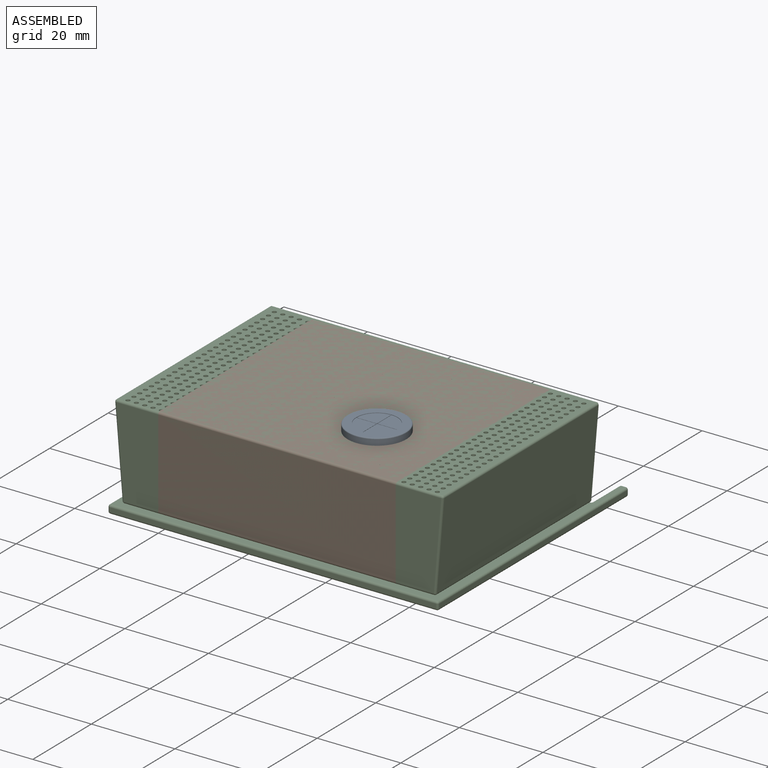
[diagram: assembled view]
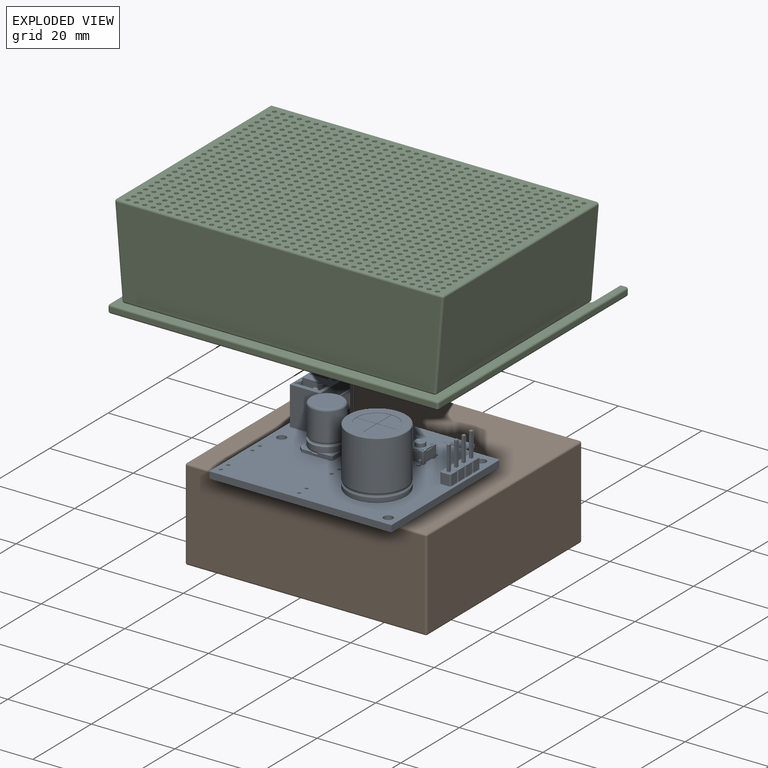
[diagram: exploded view]
GUIDED TOUR — FREECAD ASSEMBLY "siedle-bus"

This assembly has 3 components, labeled P0..P2 below (a component is one placed body or linked part; the same part can appear more than once), held together by 0 modeled joints plus 3 derived contact edges. A joint is a constraint between two components; its type names the relative motion it leaves free:
  CONTACT — a derived adjacency edge — the two components touch in the source model (clearance under 2% of the assembly's diagonal); it is measured from the geometry, not a modeled constraint.
Axis/direction vectors are unit vectors and 'through' points are millimeter coordinates, both in the assembly's world frame.

MATES
  1. CONTACT "contact_0_1": P0 <-> P1, contact direction (-0.252, 0.679, -0.689) through (155.05, -107.01, -1.62) mm (derived from contact, not a modeled constraint)
  2. CONTACT "contact_0_2": P0 <-> P2, contact direction (0.000, 0.000, 1.000) through (154.67, -105.57, -1.62) mm (derived from contact, not a modeled constraint)
  3. CONTACT "contact_1_2": P1 <-> P2, contact direction (0.000, 0.000, 1.000) through (192.45, -95.60, -2.10) mm (derived from contact, not a modeled constraint)

ASSEMBLY ORDER
  1. P0 — the base component [order heuristic]
  2. P1 [order heuristic]
  3. P2 [order heuristic]
Order-tag legend:
  [order heuristic] — this assembly is geometrically interlocked (no collision-free removal order exists), so components are listed in mate-graph order; insertion feasibility is not verified.

Of the 3 components, 2 carry a construction recipe — the FreeCAD feature program (sketches with constraints, then the solid features that consume them) that regenerates the part from scratch, quoted from this document or from the linked companion document it references; the rest are supplied as boundary geometry only. The tour below walks the components in assembly order: each is shown spotlighted twice — in the assembled view, then in the exploded view, where a leader line traces a displaced component back to its assembled socket (components that stay in place when exploded have no leader line; saturated green if recipe-attached, orange if geometry-only; every other component desaturated gray) — followed by its recipe or geometry summary and the mates that hold it.
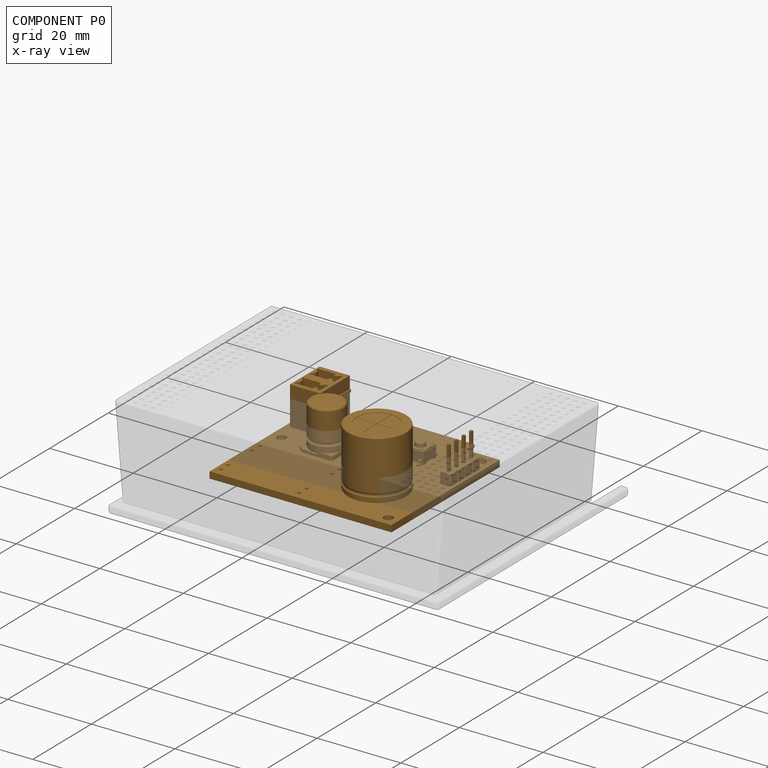
[diagram: component P0 — x-ray view]
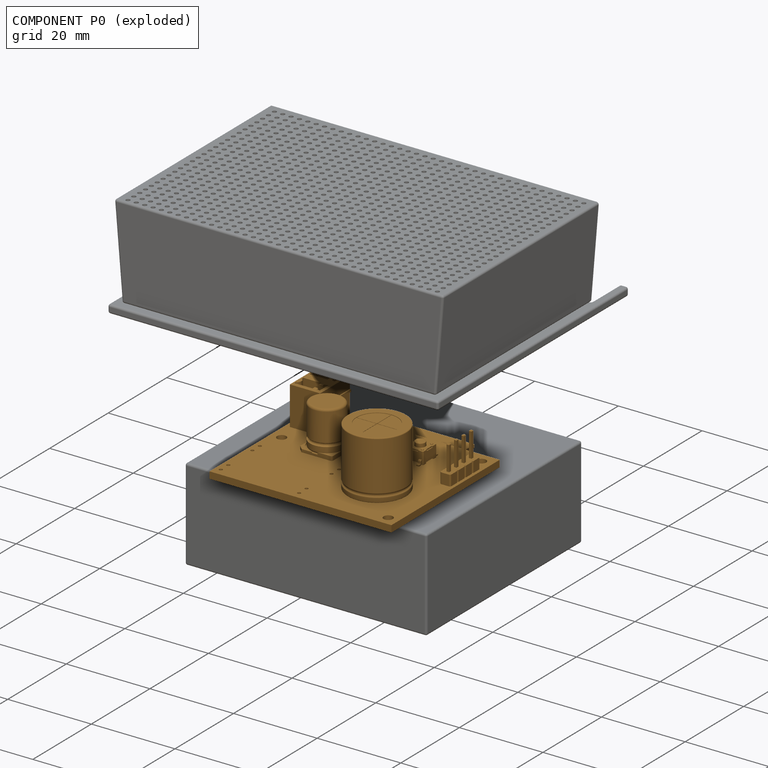
[diagram: component P0 — exploded]
COMPONENT P0 — geometry summary ("siedle-bus"; no construction recipe available for this part):
  bounding box: 43.5 x 42.9 x 18.7 mm
  tessellated surface: 48,012 triangles
  volume: 6959 mm^3 (20% of its bounding box)
Held by: resting contact with P1 (derived edge); resting contact with P2 (derived edge).
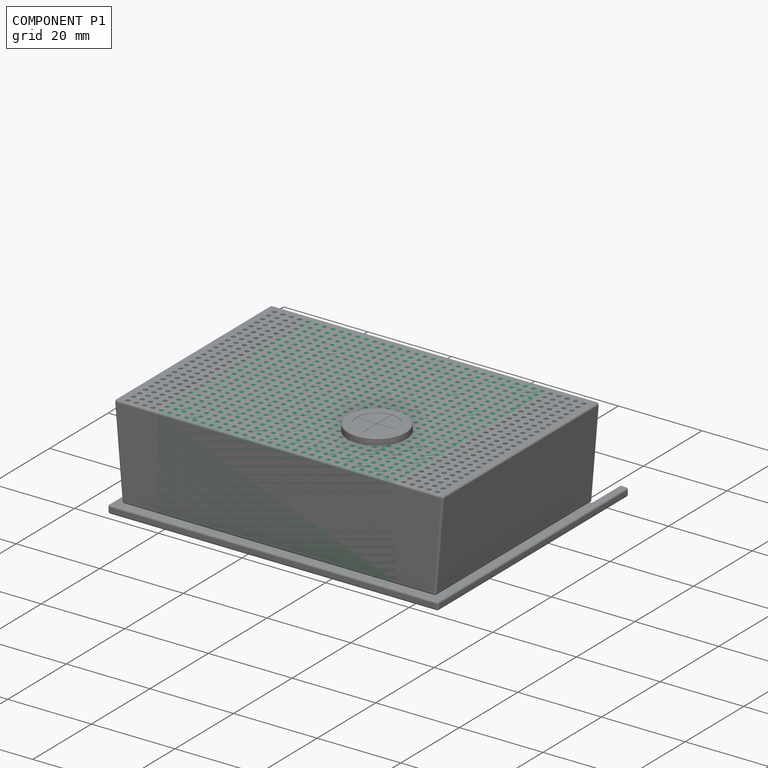
[diagram: component P1 — assembled]
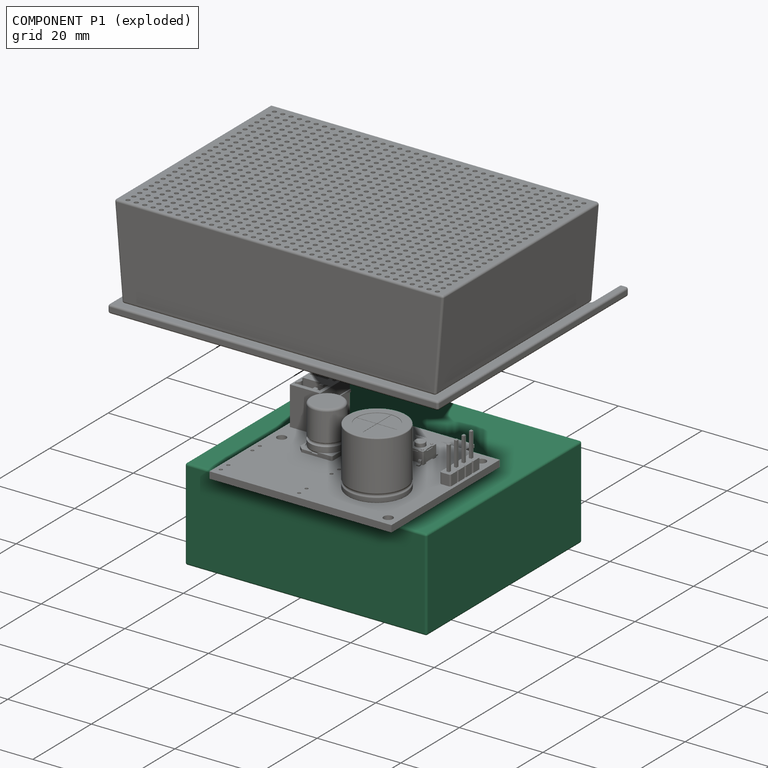
[diagram: component P1 — exploded]
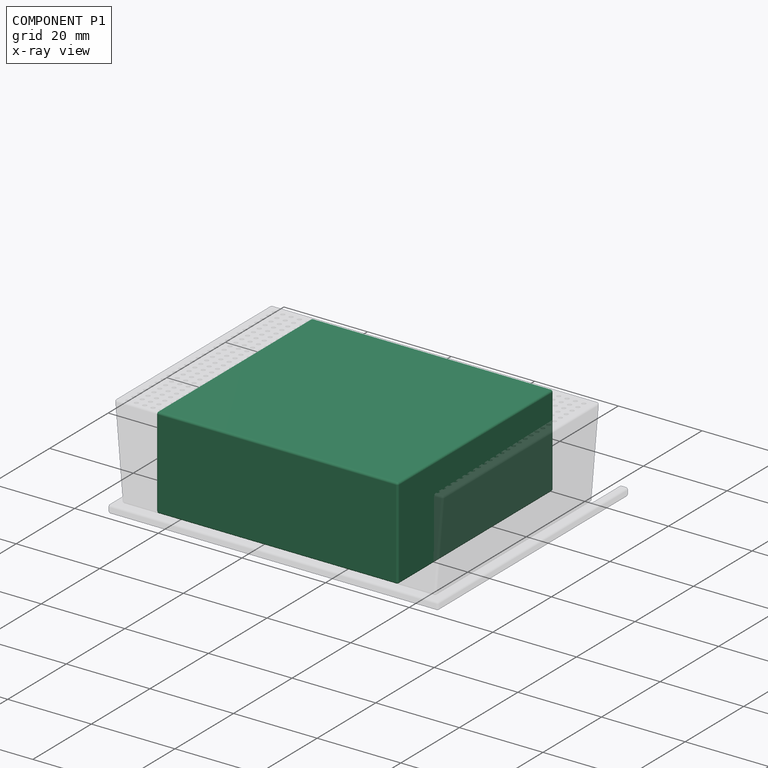
[diagram: component P1 — x-ray view]
COMPONENT P1 — recipe-attached ("cage_mini", modeled in this document).
Held by: resting contact with P0 (derived edge); resting contact with P2 (derived edge).
Construction recipe (the document's own serialized feature program — sketch geometry with constraints, then the solid features built on it; lengths are millimeters unless a unit is written):

FEATURE [PartDesign::SubShapeBinder] Binder  label="PCB"
  BindCopyOnChange = 0
  BindMode = 0
  ClaimChildren = false
  Context = -> Part [Binder.]
  Fuse = false
  MakeFace = true
  OffsetFill = false
  OffsetIntersection = false
  OffsetJoinType = 0
  OffsetOpenResult = false
  PartialLoad = false
  Refine = true
  Relative = true
  Support = -> [Board_cf86]
  _Version = 2
FEATURE [PartDesign::FeatureBase] BaseFeature
  BaseFeature = -> Extrude
  Suppressed = false
FEATURE [Sketcher::SketchObject] Sketch001
  ArcFitTolerance = 1e-06
  AttachmentSupport = -> [BaseFeature]
  ExternalGeometry = -> [BaseFeature,Binder]
  FullyConstrained = true
  MakeInternals = false
  MapMode = 5
  Placement = pos=(0,0,-7.6) rot=(1,0,0;3.14159rad)
  expr: Constraints[10] = Spreadsheet.cage_thickness
  expr: Constraints[16] = Spreadsheet.cage_thickness
  expr: Constraints[18] = Spreadsheet.space_for_cables
  expr: Constraints[25] = Spreadsheet.cage_thickness
  expr: Constraints[26] = Spreadsheet.cage_screws_head_diameter
  expr: Constraints[27] = Spreadsheet.cage_screws_head_diameter
  expr: Constraints[28] = Spreadsheet.cage_screws_head_diameter
  expr: Constraints[32] = Spreadsheet.cage_screws_hole_diameter
  expr: Constraints[33] = Spreadsheet.cage_screws_hole_diameter
  expr: Constraints[34] = Spreadsheet.cage_screws_hole_diameter
  expr: Constraints[8] = Spreadsheet.cage_thickness
  expr: Constraints[9] = Spreadsheet.cage_thickness
  sketch-geometry (20):
    g0: LineSegment StartX=198 StartY=130.5 StartZ=0 EndX=146.5 EndY=130.5 EndZ=0
    g1: LineSegment StartX=146.5 StartY=130.5 StartZ=0 EndX=146.5 EndY=81.64 EndZ=0
    g2: LineSegment StartX=146.5 StartY=81.64 StartZ=0 EndX=198 EndY=81.64 EndZ=0
    g3: LineSegment StartX=198 StartY=81.64 StartZ=0 EndX=198 EndY=130.5 EndZ=0
    g4: ArcOfCircle CenterX=152 CenterY=98.855 CenterZ=0 NormalX=0 NormalY=0 NormalZ=1 AngleXU=0 Radius=3.5 StartAngle=-6.22e-14 EndAngle=3.14159
    g5: ArcOfCircle CenterX=152 CenterY=94.225 CenterZ=0 NormalX=0 NormalY=0 NormalZ=1 AngleXU=0 Radius=3.5 StartAngle=3.14159 EndAngle=6.28319
    g6: LineSegment StartX=155.5 StartY=98.855 StartZ=0 EndX=155.5 EndY=94.225 EndZ=0
    g7: LineSegment StartX=148.5 StartY=98.855 StartZ=0 EndX=148.5 EndY=94.225 EndZ=0
    g8: LineSegment [constr] StartX=152 StartY=98.855 StartZ=0 EndX=155.725 EndY=98.855 EndZ=0
    g9: LineSegment [constr] StartX=152 StartY=94.225 StartZ=0 EndX=155.275 EndY=94.225 EndZ=0
    g10: Circle [constr] CenterX=192.5 CenterY=106.499 CenterZ=0 NormalX=0 NormalY=0 NormalZ=1 AngleXU=0 Radius=3.5
    g11: Circle [constr] CenterX=148 CenterY=125 CenterZ=0 NormalX=0 NormalY=0 NormalZ=1 AngleXU=0 Radius=3.5
    g12: Circle [constr] CenterX=148 CenterY=87.14 CenterZ=0 NormalX=0 NormalY=0 NormalZ=1 AngleXU=0 Radius=3.5
    g13: Circle CenterX=148 CenterY=87.14 CenterZ=0 NormalX=0 NormalY=0 NormalZ=1 AngleXU=0 Radius=2
    g14: Circle CenterX=148 CenterY=125 CenterZ=0 NormalX=0 NormalY=0 NormalZ=1 AngleXU=0 Radius=2
    g15: Circle CenterX=192.5 CenterY=106.499 CenterZ=0 NormalX=0 NormalY=0 NormalZ=1 AngleXU=0 Radius=2
    g16: LineSegment [constr] StartX=196 StartY=128.5 StartZ=0 EndX=144.5 EndY=128.5 EndZ=0
    g17: LineSegment [constr] StartX=144.5 StartY=128.5 StartZ=0 EndX=144.5 EndY=83.64 EndZ=0
    g18: LineSegment [constr] StartX=144.5 StartY=83.64 StartZ=0 EndX=196 EndY=83.64 EndZ=0
    g19: LineSegment [constr] StartX=196 StartY=83.64 StartZ=0 EndX=196 EndY=128.5 EndZ=0
  constraints (51):
    c: Coincident(g0,g1)
    c: Coincident(g1,g2)
    c: Coincident(g2,g3)
    c: Coincident(g3,g0)
    c: Horizontal(g0)
    c: Horizontal(g2)
    c: Vertical(g1)
    c: Vertical(g3)
    c: Distance(g3,g-3) = 2
    c: Distance(g-5,g2) = 2
    c: Distance(g0,g-4) = 2
    c: Tangent(g4,g6) = 1.5708
    c: Tangent(g5,g6) = 1.5708
    c: Tangent(g5,g7) = -1.5708
    c: Equal(g4,g5)
    c: Tangent(g7,g4) = -1.5708
    c: Distance(g4,g1) = 2
    c: Parallel(g1,g7)
    c: Distance(g6,g7) = 7
    c: Coincident(g8,g4)
    c: Coincident(g8,g-11)
    c: Horizontal(g8)
    c: Coincident(g9,g5)
    c: Coincident(g9,g-9)
    c: Horizontal(g9)
    c: Distance(g-7,g1) = 2
    c: Diameter(g11) = 7
    c: Diameter(g10) = 7
    c: Diameter(g12) = 7
    c: Coincident(g15,g10)
    c: Coincident(g11,g14)
    c: Coincident(g13,g12)
    c: Diameter(g13) = 4
    c: Diameter(g14) = 4
    c: Diameter(g15) = 4
    c: Horizontal(g10,g-12)
    c: Coincident(g16,g17)
    c: Coincident(g17,g18)
    c: Coincident(g18,g19)
    c: Coincident(g19,g16)
    c: Horizontal(g16)
    c: Horizontal(g18)
    c: Vertical(g17)
    c: Coincident(g16,g-4)
    c: Coincident(g18,g-6)
    c: PointOnObject(g-7,g17)
    c: Tangent(g11,g16)
    c: Tangent(g17,g11)
    c: Tangent(g12,g18)
    c: Tangent(g12,g17)
    c: Tangent(g19,g10)
FEATURE [PartDesign::Pad] Pad  label="cage_bottom"
  BaseFeature = -> BaseFeature
  Direction = (0,0,-1)
  Length = 2
  Length2 = 10
  Profile = -> Sketch001
  ReferenceAxis = -> Sketch001 [N_Axis]
  Refine = true
  Suppressed = false
  Type = 0
  expr: Length = Spreadsheet.cage_thickness
FEATURE [Sketcher::SketchObject] Sketch002
  ArcFitTolerance = 1e-06
  AttachmentSupport = -> [Pad]
  ExternalGeometry = -> [Pad]
  FullyConstrained = true
  MakeInternals = false
  MapMode = 5
  Placement = pos=(0,0,-7.6) rot=(0,0,1;0rad)
  sketch-geometry (8):
    g0: LineSegment StartX=196 StartY=-83.64 StartZ=0 EndX=146.5 EndY=-83.64 EndZ=0
    g1: LineSegment StartX=146.5 StartY=-83.64 StartZ=0 EndX=146.5 EndY=-128.5 EndZ=0
    g2: LineSegment StartX=146.5 StartY=-128.5 StartZ=0 EndX=196 EndY=-128.5 EndZ=0
    g3: LineSegment StartX=196 StartY=-128.5 StartZ=0 EndX=196 EndY=-83.64 EndZ=0
    g4: LineSegment StartX=198 StartY=-81.64 StartZ=0 EndX=144.5 EndY=-81.64 EndZ=0
    g5: LineSegment StartX=144.5 StartY=-81.64 StartZ=0 EndX=144.5 EndY=-130.5 EndZ=0
    g6: LineSegment StartX=144.5 StartY=-130.5 StartZ=0 EndX=198 EndY=-130.5 EndZ=0
    g7: LineSegment StartX=198 StartY=-130.5 StartZ=0 EndX=198 EndY=-81.64 EndZ=0
  constraints (20):
    c: Coincident(g0,g1)
    c: Coincident(g1,g2)
    c: Coincident(g2,g3)
    c: Coincident(g3,g0)
    c: Horizontal(g0)
    c: Vertical(g1)
    c: Vertical(g3)
    c: Coincident(g0,g-11)
    c: Coincident(g4,g5)
    c: Coincident(g5,g6)
    c: Coincident(g6,g7)
    c: Coincident(g7,g4)
    c: Horizontal(g4)
    c: Horizontal(g6)
    c: Vertical(g5)
    c: Vertical(g7)
    c: Coincident(g4,g-6)
    c: Coincident(g5,g-5)
    c: PointOnObject(g-9,g1)
    c: Tangent(g2,g-8)
FEATURE [PartDesign::Pad] Pad001  label="cage_walls"
  BaseFeature = -> Pad
  Direction = (0,0,1)
  Length = 18
  Length2 = 10
  Profile = -> Sketch002
  ReferenceAxis = -> Sketch002 [N_Axis]
  Refine = true
  Suppressed = false
  Type = 0
  expr: Length = Spreadsheet.pcb_components_bottom + Spreadsheet.pcb_tickness + Spreadsheet.pcb_components_top
FEATURE [PartDesign::ShapeBinder] ShapeBinder001  label="inside_shapebinder"
  Support = -> [Pad001]
  TraceSupport = false
FEATURE [Sketcher::SketchObject] Sketch003
  ArcFitTolerance = 1e-06
  AttachmentSupport = -> [ShapeBinder001]
  ExternalGeometry = -> [ShapeBinder001]
  FullyConstrained = true
  MakeInternals = false
  MapMode = 5
  Placement = pos=(0,0,10.4) rot=(0,0,1;0rad)
  expr: Constraints[10] = Spreadsheet.cage_slack + Spreadsheet.cage_thickness
  expr: Constraints[11] = Spreadsheet.cage_slack + Spreadsheet.cage_thickness
  expr: Constraints[8] = Spreadsheet.cage_slack + Spreadsheet.cage_thickness
  expr: Constraints[9] = Spreadsheet.cage_slack + Spreadsheet.cage_thickness
  sketch-geometry (4):
    g0: LineSegment StartX=200.15 StartY=-79.49 StartZ=0 EndX=142.35 EndY=-79.49 EndZ=0
    g1: LineSegment StartX=142.35 StartY=-79.49 StartZ=0 EndX=142.35 EndY=-132.65 EndZ=0
    g2: LineSegment StartX=142.35 StartY=-132.65 StartZ=0 EndX=200.15 EndY=-132.65 EndZ=0
    g3: LineSegment StartX=200.15 StartY=-132.65 StartZ=0 EndX=200.15 EndY=-79.49 EndZ=0
  constraints (12):
    c: Coincident(g0,g1)
    c: Coincident(g1,g2)
    c: Coincident(g2,g3)
    c: Coincident(g3,g0)
    c: Horizontal(g0)
    c: Horizontal(g2)
    c: Vertical(g1)
    c: Vertical(g3)
    c: Distance(g3,g-5) = 2.15
    c: Distance(g-4,g2) = 2.15
    c: Distance(g0,g-3) = 2.15
    c: Distance(g1,g-6) = 2.15
FEATURE [PartDesign::Pad] Pad002  label="cover"
  Direction = (0,0,1)
  Length = 2
  Length2 = 10
  Profile = -> Sketch003
  ReferenceAxis = -> Sketch003 [N_Axis]
  Refine = true
  Suppressed = false
  Type = 0
  expr: Length = Spreadsheet.cage_thickness
FEATURE [Sketcher::SketchObject] Sketch004
  ArcFitTolerance = 1e-06
  AttachmentSupport = -> [Pad002]
  ExternalGeometry = -> [Pad002]
  FullyConstrained = true
  MakeInternals = false
  MapMode = 5
  Placement = pos=(0,0,10.4) rot=(1,0,0;3.14159rad)
  expr: Constraints[18] = Spreadsheet.cage_thickness
  expr: Constraints[19] = Spreadsheet.cage_thickness
  expr: Constraints[20] = Spreadsheet.cage_thickness
  expr: Constraints[21] = Spreadsheet.cage_thickness
  sketch-geometry (8):
    g0: LineSegment StartX=200.15 StartY=132.65 StartZ=0 EndX=142.35 EndY=132.65 EndZ=0
    g1: LineSegment StartX=142.35 StartY=132.65 StartZ=0 EndX=142.35 EndY=79.49 EndZ=0
    g2: LineSegment StartX=142.35 StartY=79.49 StartZ=0 EndX=200.15 EndY=79.49 EndZ=0
    g3: LineSegment StartX=200.15 StartY=79.49 StartZ=0 EndX=200.15 EndY=132.65 EndZ=0
    g4: LineSegment StartX=198.15 StartY=130.65 StartZ=0 EndX=144.35 EndY=130.65 EndZ=0
    g5: LineSegment StartX=144.35 StartY=130.65 StartZ=0 EndX=144.35 EndY=81.49 EndZ=0
    g6: LineSegment StartX=144.35 StartY=81.49 StartZ=0 EndX=198.15 EndY=81.49 EndZ=0
    g7: LineSegment StartX=198.15 StartY=81.49 StartZ=0 EndX=198.15 EndY=130.65 EndZ=0
  constraints (22):
    c: Coincident(g0,g1)
    c: Coincident(g1,g2)
    c: Coincident(g2,g3)
    c: Coincident(g3,g0)
    c: Horizontal(g0)
    c: Horizontal(g2)
    c: Vertical(g1)
    c: Vertical(g3)
    c: Coincident(g-4,g0)
    c: Coincident(g1,g-6)
    c: Coincident(g4,g5)
    c: Coincident(g5,g6)
    c: Coincident(g6,g7)
    c: Coincident(g7,g4)
    c: Horizontal(g4)
    c: Horizontal(g6)
    c: Vertical(g5)
    c: Vertical(g7)
    c: Distance(g3,g7) = 2
    c: Distance(g5,g1) = 2
    c: Distance(g6,g2) = 2
    c: Distance(g0,g4) = 2
FEATURE [PartDesign::Pad] Pad003  label="cover_walls"
  BaseFeature = -> Pad002
  Direction = (0,0,-1)
  Length = 20
  Length2 = 10
  Profile = -> Sketch004
  ReferenceAxis = -> Sketch004 [N_Axis]
  Refine = true
  Suppressed = false
  Type = 0
  expr: Length = Spreadsheet.cage_thickness + Spreadsheet.pcb_components_bottom + Spreadsheet.pcb_tickness + Spreadsheet.pcb_components_top
FEATURE [PartDesign::Fillet] Fillet
  Base = -> Pad003 [Edge1,Edge2,Edge3,Edge4,Edge5,Edge6,Edge7,Edge8,Edge9,Edge10,Edge11,Edge12,Edge13,Edge14,Edge15,Edge16,Edge17,Edge18,Edge19,Edge20,Edge21,Edge22,Edge23,Edge24]
  BaseFeature = -> Pad003
  Radius = 0.5
  Refine = true
  SupportTransform = false
  Suppressed = false
  UseAllEdges = true
  expr: Radius = Spreadsheet.fillet_diameter
FEATURE [PartDesign::Body] Body001  label="outside"
  AllowCompound = false
  Group = -> [ShapeBinder001,Sketch003,Pad002,Sketch004,Pad003,Fillet]
  Origin = -> Origin011
  Tip = -> Fillet
FEATURE [PartDesign::Fillet] Fillet001
  Base = -> Pad001 [Face26,Face23,Face25,Face5,Face9,Face18,Face34,Face33,Face6,Face7,Face31,Face35,Face17,Face12,Face21,Edge77,Face28,Face8,Face3,Face1,Face2,Face4,Face20,Face16,Face15,Face14,Face13,Face22,Face27,Face32,Face19,Face11,Face10]
  BaseFeature = -> Pad001
  Radius = 0.5
  Refine = true
  SupportTransform = false
  Suppressed = false
  UseAllEdges = false
  expr: Radius = Spreadsheet.fillet_diameter
FEATURE [PartDesign::Body] Body  label="inside"
  AllowCompound = false
  BaseFeature = -> Extrude
  Group = -> [BaseFeature,Sketch001,Pad,Sketch002,Pad001,Binder,Fillet001]
  Origin = -> Origin010
  Tip = -> Fillet001
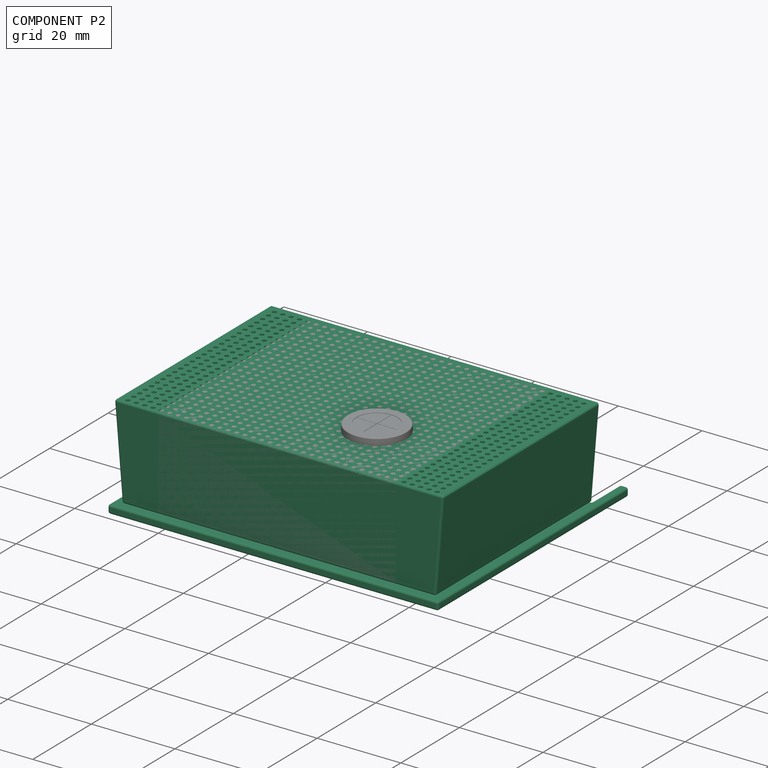
[diagram: component P2 — assembled]
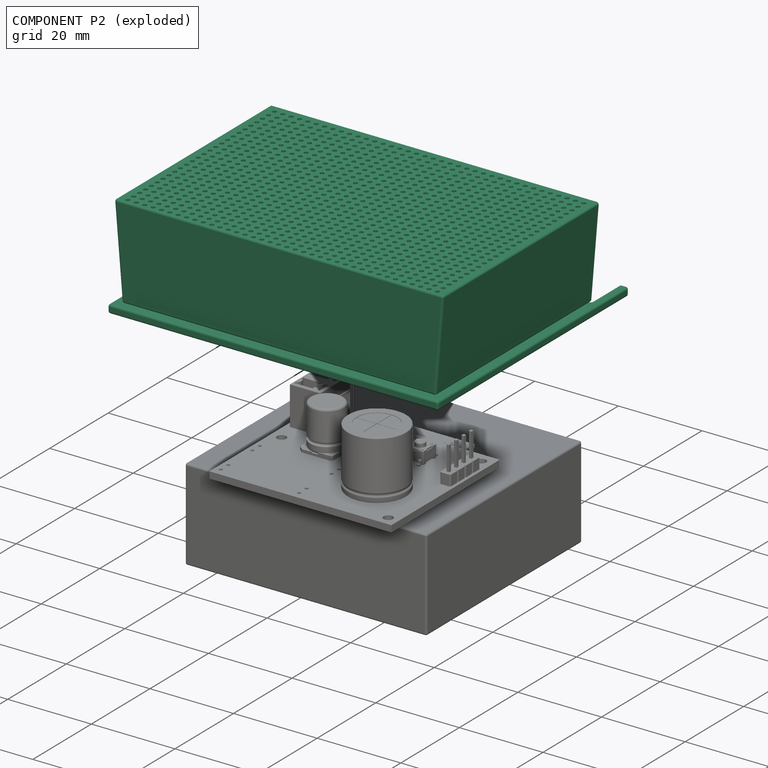
[diagram: component P2 — exploded]
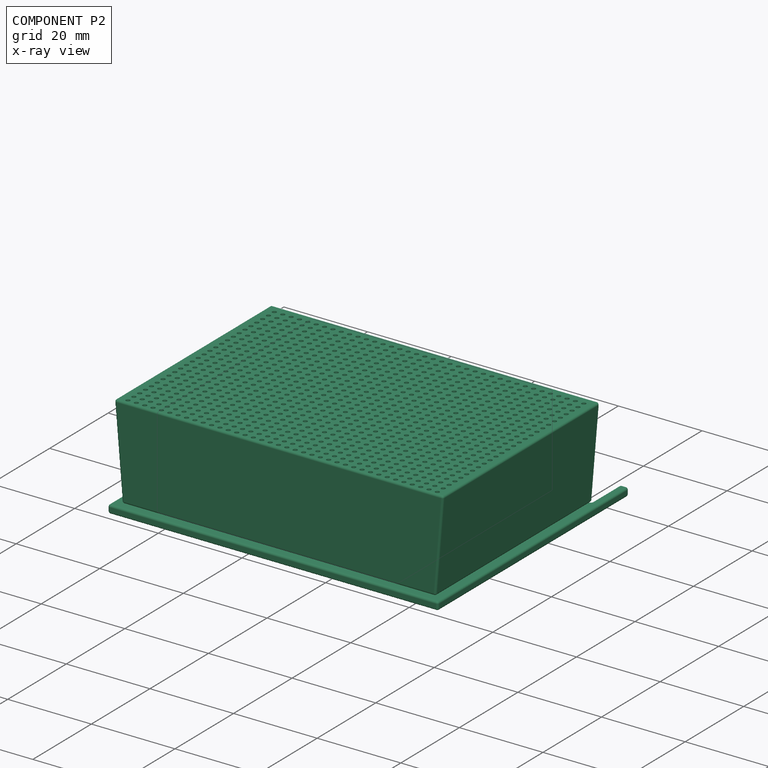
[diagram: component P2 — x-ray view]
COMPONENT P2 — recipe-attached ("cage_large", modeled in this document).
Held by: resting contact with P0 (derived edge); resting contact with P1 (derived edge).
Construction recipe (the document's own serialized feature program — sketch geometry with constraints, then the solid features built on it; lengths are millimeters unless a unit is written):

FEATURE [PartDesign::SubShapeBinder] Binder001  label="PCB001"
  BindCopyOnChange = 0
  BindMode = 0
  ClaimChildren = false
  Context = -> Part001 [Binder.]
  Fuse = false
  MakeFace = true
  OffsetFill = false
  OffsetIntersection = false
  OffsetJoinType = 0
  OffsetOpenResult = false
  PartialLoad = false
  Refine = true
  Relative = true
  Support = -> [Board_cf86]
  _Version = 2
FEATURE [PartDesign::FeatureBase] BaseFeature001
  BaseFeature = -> Extrude001
  Suppressed = false
FEATURE [Sketcher::SketchObject] Sketch006
  ArcFitTolerance = 1e-06
  AttachmentSupport = -> [BaseFeature001]
  ExternalGeometry = -> [BaseFeature001,Binder001]
  FullyConstrained = true
  MakeInternals = false
  MapMode = 5
  Placement = pos=(0,0,-7.6) rot=(1,0,0;3.14159rad)
  expr: Constraints[16] = Spreadsheet.space_for_cables
  expr: Constraints[23] = Spreadsheet.cage_screws_head_diameter
  expr: Constraints[24] = Spreadsheet.cage_screws_head_diameter
  expr: Constraints[25] = Spreadsheet.cage_screws_head_diameter
  expr: Constraints[29] = Spreadsheet.cage_screws_hole_diameter
  expr: Constraints[30] = Spreadsheet.cage_screws_hole_diameter
  expr: Constraints[31] = Spreadsheet.cage_screws_hole_diameter
  expr: Constraints[46] = Spreadsheet.cage_thickness
  expr: Constraints[47] = Spreadsheet.cage_thickness
  expr: Constraints[48] = Spreadsheet.cage_thickness
  expr: Constraints[8] = Spreadsheet.cage_thickness
  expr: Constraints[9] = Spreadsheet.cage_thickness
  sketch-geometry (20):
    g0: LineSegment StartX=207 StartY=130.5 StartZ=0 EndX=136.3 EndY=130.5 EndZ=0
    g1: LineSegment StartX=136.3 StartY=130.5 StartZ=0 EndX=136.3 EndY=81.64 EndZ=0
    g2: LineSegment StartX=136.3 StartY=81.64 StartZ=0 EndX=207 EndY=81.64 EndZ=0
    g3: LineSegment StartX=207 StartY=81.64 StartZ=0 EndX=207 EndY=130.5 EndZ=0
    g4: ArcOfCircle CenterX=141.8 CenterY=98.855 CenterZ=0 NormalX=0 NormalY=0 NormalZ=1 AngleXU=0 Radius=3.5 StartAngle=-7.28e-14 EndAngle=3.14159
    g5: ArcOfCircle CenterX=141.8 CenterY=94.225 CenterZ=0 NormalX=0 NormalY=0 NormalZ=1 AngleXU=0 Radius=3.5 StartAngle=3.14159 EndAngle=6.28319
    g6: LineSegment StartX=145.3 StartY=98.855 StartZ=0 EndX=145.3 EndY=94.225 EndZ=0
    g7: LineSegment StartX=138.3 StartY=98.855 StartZ=0 EndX=138.3 EndY=94.225 EndZ=0
    g8: LineSegment [constr] StartX=141.8 StartY=98.855 StartZ=0 EndX=155.725 EndY=98.855 EndZ=0
    g9: LineSegment [constr] StartX=141.8 StartY=94.225 StartZ=0 EndX=155.275 EndY=94.225 EndZ=0
    g10: Circle [constr] CenterX=201.5 CenterY=106.499 CenterZ=0 NormalX=0 NormalY=0 NormalZ=1 AngleXU=0 Radius=3.5
    g11: Circle [constr] CenterX=141.8 CenterY=125 CenterZ=0 NormalX=0 NormalY=0 NormalZ=1 AngleXU=0 Radius=3.5
    g12: Circle [constr] CenterX=141.8 CenterY=87.14 CenterZ=0 NormalX=0 NormalY=0 NormalZ=1 AngleXU=0 Radius=3.5
    g13: Circle CenterX=141.8 CenterY=87.14 CenterZ=0 NormalX=0 NormalY=0 NormalZ=1 AngleXU=0 Radius=2
    g14: Circle CenterX=141.8 CenterY=125 CenterZ=0 NormalX=0 NormalY=0 NormalZ=1 AngleXU=0 Radius=2
    g15: Circle CenterX=201.5 CenterY=106.499 CenterZ=0 NormalX=0 NormalY=0 NormalZ=1 AngleXU=0 Radius=2
    g16: LineSegment [constr] StartX=205 StartY=128.5 StartZ=0 EndX=138.3 EndY=128.5 EndZ=0
    g17: LineSegment [constr] StartX=138.3 StartY=128.5 StartZ=0 EndX=138.3 EndY=83.64 EndZ=0
    g18: LineSegment [constr] StartX=138.3 StartY=83.64 StartZ=0 EndX=205 EndY=83.64 EndZ=0
    g19: LineSegment [constr] StartX=205 StartY=83.64 StartZ=0 EndX=205 EndY=128.5 EndZ=0
  constraints (51):
    c: Coincident(g0,g1)
    c: Coincident(g1,g2)
    c: Coincident(g2,g3)
    c: Coincident(g3,g0)
    c: Horizontal(g0)
    c: Horizontal(g2)
    c: Vertical(g1)
    c: Vertical(g3)
    c: Distance(g-5,g2) = 2
    c: Distance(g0,g-4) = 2
    c: Tangent(g4,g6) = 1.5708
    c: Tangent(g5,g6) = 1.5708
    c: Tangent(g5,g7) = -1.5708
    c: Equal(g4,g5)
    c: Tangent(g7,g4) = -1.5708
    c: Parallel(g1,g7)
    c: Distance(g6,g7) = 7
    c: Coincident(g8,g4)
    c: Coincident(g8,g-11)
    c: Horizontal(g8)
    c: Coincident(g9,g5)
    c: Coincident(g9,g-9)
    c: Horizontal(g9)
    c: Diameter(g11) = 7
    c: Diameter(g10) = 7
    c: Diameter(g12) = 7
    c: Coincident(g15,g10)
    c: Coincident(g11,g14)
    c: Coincident(g13,g12)
    c: Diameter(g13) = 4
    c: Diameter(g14) = 4
    c: Diameter(g15) = 4
    c: Horizontal(g10,g-12)
    c: Coincident(g16,g17)
    c: Coincident(g17,g18)
    c: Coincident(g18,g19)
    c: Coincident(g19,g16)
    c: Horizontal(g16)
    c: Horizontal(g18)
    c: Vertical(g17)
    c: Coincident(g16,g-4)
    c: Coincident(g18,g-6)
    c: PointOnObject(g-7,g17)
    c: Tangent(g11,g16)
    c: Tangent(g12,g18)
    c: Tangent(g19,g10)
    c: Distance(g1,g7) = 2
    c: Distance(g3,g19) = 2
    c: Distance(g17,g1) = 2
    c: Tangent(g11,g17)
    c: Tangent(g12,g17)
FEATURE [PartDesign::Pad] Pad004  label="cage_large_bottom"
  BaseFeature = -> BaseFeature001
  Direction = (0,0,-1)
  Length = 2
  Length2 = 10
  Profile = -> Sketch006
  ReferenceAxis = -> Sketch006 [N_Axis]
  Refine = true
  Suppressed = false
  Type = 0
  expr: Length = Spreadsheet.cage_thickness
FEATURE [Sketcher::SketchObject] Sketch007
  ArcFitTolerance = 1e-06
  AttachmentSupport = -> [Pad004]
  ExternalGeometry = -> [Pad004]
  FullyConstrained = true
  MakeInternals = false
  MapMode = 5
  Placement = pos=(0,0,-7.6) rot=(0,0,1;0rad)
  sketch-geometry (8):
    g0: LineSegment StartX=205 StartY=-83.64 StartZ=0 EndX=138.3 EndY=-83.64 EndZ=0
    g1: LineSegment StartX=138.3 StartY=-83.64 StartZ=0 EndX=138.3 EndY=-128.5 EndZ=0
    g2: LineSegment StartX=138.3 StartY=-128.5 StartZ=0 EndX=205 EndY=-128.5 EndZ=0
    g3: LineSegment StartX=205 StartY=-128.5 StartZ=0 EndX=205 EndY=-83.64 EndZ=0
    g4: LineSegment StartX=207 StartY=-130.5 StartZ=0 EndX=207 EndY=-81.64 EndZ=0
    g5: LineSegment StartX=207 StartY=-81.64 StartZ=0 EndX=136.3 EndY=-81.64 EndZ=0
    g6: LineSegment StartX=136.3 StartY=-81.64 StartZ=0 EndX=136.3 EndY=-130.5 EndZ=0
    g7: LineSegment StartX=136.3 StartY=-130.5 StartZ=0 EndX=207 EndY=-130.5 EndZ=0
  constraints (20):
    c: Coincident(g0,g1)
    c: Coincident(g1,g2)
    c: Coincident(g2,g3)
    c: Coincident(g3,g0)
    c: Horizontal(g0)
    c: Vertical(g1)
    c: Vertical(g3)
    c: Coincident(g0,g-8)
    c: PointOnObject(g-6,g1)
    c: Tangent(g2,g-5)
    c: Coincident(g4,g5)
    c: Coincident(g5,g6)
    c: Coincident(g6,g7)
    c: Coincident(g7,g4)
    c: Vertical(g4)
    c: Vertical(g6)
    c: Horizontal(g5)
    c: Horizontal(g7)
    c: Coincident(g4,g-3)
    c: Coincident(g5,g-9)
FEATURE [PartDesign::Pad] Pad005  label="cage_large_walls"
  BaseFeature = -> Pad004
  Direction = (0,0,1)
  Length = 18
  Length2 = 10
  Profile = -> Sketch007
  ReferenceAxis = -> Sketch007 [N_Axis]
  Refine = true
  Suppressed = false
  Type = 0
  expr: Length = Spreadsheet.pcb_components_bottom + Spreadsheet.pcb_tickness + Spreadsheet.pcb_components_top
FEATURE [PartDesign::Fillet] Fillet003
  Base = -> Pad005 [Edge1,Edge2,Edge3,Edge4,Edge5,Edge6,Edge7,Edge8,Edge9,Edge10,Edge11,Edge12,Edge13,Edge14,Edge15,Edge16,Edge17,Edge17,Edge19,Edge20,Edge21,Edge22,Edge23,Edge24,Edge25,Edge26,Edge27,Edge28,Edge29,Edge32,Edge33,Edge34,Edge35,Edge36,Edge37,Edge38,Edge39,Edge40,Edge41,Edge42,+44 more]
  BaseFeature = -> Pad005
  Radius = 0.5
  Refine = true
  SupportTransform = false
  Suppressed = false
  UseAllEdges = true
  expr: Radius = Spreadsheet.fillet_diameter
FEATURE [PartDesign::Body] Body002  label="inside_large"
  AllowCompound = false
  BaseFeature = -> Extrude001
  Group = -> [BaseFeature001,Sketch006,Pad004,Sketch007,Pad005,Binder001,Fillet003]
  Origin = -> Origin013
  Tip = -> Fillet003
FEATURE [PartDesign::ShapeBinder] ShapeBinder  label="inside_large_ShapeBinder"
  Support = -> [Pad005]
  TraceSupport = false
FEATURE [Sketcher::SketchObject] Sketch010
  ArcFitTolerance = 1e-06
  AttachmentSupport = -> [ShapeBinder]
  ExternalGeometry = -> [ShapeBinder]
  FullyConstrained = true
  MakeInternals = false
  MapMode = 5
  Placement = pos=(0,0,10.4) rot=(0,0,1;0rad)
  expr: Constraints[10] = Spreadsheet.cage_thickness + Spreadsheet.cage_slack
  expr: Constraints[11] = Spreadsheet.cage_thickness + Spreadsheet.cage_slack
  expr: Constraints[8] = Spreadsheet.cage_thickness + Spreadsheet.cage_slack
  expr: Constraints[9] = Spreadsheet.cage_thickness + Spreadsheet.cage_slack
  sketch-geometry (4):
    g0: LineSegment StartX=209.15 StartY=-79.49 StartZ=0 EndX=134.15 EndY=-79.49 EndZ=0
    g1: LineSegment StartX=134.15 StartY=-79.49 StartZ=0 EndX=134.15 EndY=-132.65 EndZ=0
    g2: LineSegment StartX=134.15 StartY=-132.65 StartZ=0 EndX=209.15 EndY=-132.65 EndZ=0
    g3: LineSegment StartX=209.15 StartY=-132.65 StartZ=0 EndX=209.15 EndY=-79.49 EndZ=0
  constraints (12):
    c: Coincident(g0,g1)
    c: Coincident(g1,g2)
    c: Coincident(g2,g3)
    c: Coincident(g3,g0)
    c: Horizontal(g0)
    c: Horizontal(g2)
    c: Vertical(g1)
    c: Vertical(g3)
    c: Distance(g3,g-3) = 2.15
    c: Distance(g0,g-6) = 2.15
    c: Distance(g1,g-5) = 2.15
    c: Distance(g2,g-4) = 2.15
FEATURE [PartDesign::Pad] Pad008  label="cover_large_bottom"
  Direction = (0,0,1)
  Length = 2
  Length2 = 10
  Profile = -> Sketch010
  ReferenceAxis = -> Sketch010 [N_Axis]
  Refine = true
  Suppressed = false
  Type = 0
  expr: Length = Spreadsheet.cage_thickness
FEATURE [Sketcher::SketchObject] Sketch011
  ArcFitTolerance = 1e-06
  AttachmentSupport = -> [Pad008]
  ExternalGeometry = -> [Pad008]
  FullyConstrained = true
  MakeInternals = false
  MapMode = 5
  Placement = pos=(0,0,10.4) rot=(1,0,0;3.14159rad)
  expr: Constraints[18] = Spreadsheet.cage_thickness
  expr: Constraints[19] = Spreadsheet.cage_thickness
  expr: Constraints[20] = Spreadsheet.cage_thickness
  expr: Constraints[21] = Spreadsheet.cage_thickness
  sketch-geometry (8):
    g0: LineSegment StartX=209.15 StartY=132.65 StartZ=0 EndX=134.15 EndY=132.65 EndZ=0
    g1: LineSegment StartX=134.15 StartY=132.65 StartZ=0 EndX=134.15 EndY=79.49 EndZ=0
    g2: LineSegment StartX=134.15 StartY=79.49 StartZ=0 EndX=209.15 EndY=79.49 EndZ=0
    g3: LineSegment StartX=209.15 StartY=79.49 StartZ=0 EndX=209.15 EndY=132.65 EndZ=0
    g4: LineSegment StartX=136.15 StartY=130.65 StartZ=0 EndX=136.15 EndY=81.49 EndZ=0
    g5: LineSegment StartX=136.15 StartY=81.49 StartZ=0 EndX=207.15 EndY=81.49 EndZ=0
    g6: LineSegment StartX=207.15 StartY=81.49 StartZ=0 EndX=207.15 EndY=130.65 EndZ=0
    g7: LineSegment StartX=207.15 StartY=130.65 StartZ=0 EndX=136.15 EndY=130.65 EndZ=0
  constraints (22):
    c: Coincident(g0,g1)
    c: Coincident(g1,g2)
    c: Coincident(g2,g3)
    c: Coincident(g3,g0)
    c: Horizontal(g0)
    c: Horizontal(g2)
    c: Vertical(g1)
    c: Vertical(g3)
    c: Coincident(g0,g-5)
    c: Coincident(g1,g-6)
    c: Coincident(g4,g5)
    c: Coincident(g5,g6)
    c: Coincident(g6,g7)
    c: Coincident(g7,g4)
    c: Vertical(g4)
    c: Vertical(g6)
    c: Horizontal(g5)
    c: Horizontal(g7)
    c: Distance(g0,g7) = 2
    c: Distance(g3,g6) = 2
    c: Distance(g2,g5) = 2
    c: Distance(g1,g4) = 2
FEATURE [PartDesign::Pad] Pad009  label="cover_large_walls"
  BaseFeature = -> Pad008
  Direction = (0,0,-1)
  Length = 20
  Length2 = 10
  Profile = -> Sketch011
  ReferenceAxis = -> Sketch011 [N_Axis]
  Refine = true
  Suppressed = false
  Type = 0
  expr: Length = Spreadsheet.cage_thickness + Spreadsheet.pcb_components_bottom + Spreadsheet.pcb_tickness + Spreadsheet.pcb_components_top
FEATURE [Sketcher::SketchObject] Sketch012
  ArcFitTolerance = 1e-06
  AttachmentSupport = -> [Pad009]
  ExternalGeometry = -> [Pad009]
  FullyConstrained = true
  MakeInternals = false
  MapMode = 5
  Placement = pos=(0,-132.65,0) rot=(1,0,0;1.5708rad)
  expr: Constraints[10] = (Spreadsheet.Siedle_wide_top - Spreadsheet.Siedle_wide_bottom) / 2
  expr: Constraints[9] = (Spreadsheet.Siedle_wide_top - Spreadsheet.Siedle_wide_bottom) / 2
  sketch-geometry (7):
    g0: LineSegment StartX=211 StartY=12.4 StartZ=0 EndX=209.15 EndY=12.4 EndZ=0
    g1: LineSegment StartX=132.3 StartY=12.4 StartZ=0 EndX=134.15 EndY=12.4 EndZ=0
    g2: LineSegment StartX=132.3 StartY=12.4 StartZ=0 EndX=134.15 EndY=-9.6 EndZ=0
    g3: LineSegment StartX=211 StartY=12.4 StartZ=0 EndX=209.15 EndY=-9.6 EndZ=0
    g4: LineSegment StartX=209.15 StartY=-9.6 StartZ=0 EndX=209.15 EndY=12.4 EndZ=0
    g5: LineSegment StartX=134.15 StartY=12.4 StartZ=0 EndX=134.15 EndY=-9.6 EndZ=0
    g6: LineSegment [constr] StartX=132.3 StartY=12.4 StartZ=0 EndX=211 EndY=12.4 EndZ=0
  constraints (15):
    c: Coincident(g2,g1)
    c: Coincident(g3,g0)
    c: Coincident(g4,g0)
    c: Coincident(g5,g1)
    c: Coincident(g1,g-5)
    c: Coincident(g0,g-6)
    c: Tangent(g-5,g6)
    c: Coincident(g6,g1)
    c: Coincident(g0,g6)
    c: DistanceX(g1,g1) = 1.85
    c: DistanceX(g0,g0) = 1.85
    c: Coincident(g2,g5)
    c: Coincident(g-4,g2)
    c: Coincident(g4,g-6)
    c: Coincident(g3,g4)
FEATURE [PartDesign::Pad] Pad010  label="cover_large_supplement"
  BaseFeature = -> Pad009
  Direction = (0,-1,2e-16)
  Length = 10
  Length2 = 10
  Profile = -> Sketch012
  ReferenceAxis = -> Sketch012 [N_Axis]
  Refine = true
  Suppressed = false
  Type = 3
  UpToFace = -> Pad009 [Face7]
FEATURE [Sketcher::SketchObject] Sketch013
  ArcFitTolerance = 1e-06
  AttachmentSupport = -> [Pad010]
  FullyConstrained = true
  MakeInternals = false
  MapMode = 5
  Placement = pos=(0,0,12.4) rot=(0,0,1;0rad)
  expr: Constraints[0] = Spreadsheet.pattern_hole_diameter
  expr: Constraints[1] = Spreadsheet.pattern_hole_offset
  expr: Constraints[2] = Spreadsheet.pattern_hole_offset + Spreadsheet.fillet_diameter
  sketch-geometry (1):
    g0: Circle CenterX=134.8 CenterY=-81.49 CenterZ=0 NormalX=0 NormalY=0 NormalZ=1 AngleXU=0 Radius=0.5
  constraints (3):
    c: Diameter(g0) = 1
    c: Distance(g0,g-4) = 2
    c: Distance(g0,g-3) = 2.5
FEATURE [PartDesign::Pocket] Pocket
  BaseFeature = -> Pad010
  Direction = (0,0,-1)
  Length = 1
  Length2 = 5
  Profile = -> Sketch013
  ReferenceAxis = -> Sketch013 [N_Axis]
  Refine = true
  Suppressed = false
  Type = 0
  expr: Length = Spreadsheet.pattern_hole_length
FEATURE [PartDesign::LinearPattern] LinearPattern
  Direction = -> Sketch013 [H_Axis]
  Length = 74
  Mode = 1
  Occurrences = 38
  Offset = 2
  Refine = true
  Suppressed = false
  TransformMode = 0
  expr: Offset = Spreadsheet.pattern_hole_offset
FEATURE [PartDesign::LinearPattern] LinearPattern001
  Direction = -> Sketch013 [V_Axis]
  Length = 50
  Mode = 1
  Occurrences = 26
  Offset = 2
  Refine = true
  Reversed = true
  Suppressed = false
  TransformMode = 0
  expr: Offset = Spreadsheet.pattern_hole_offset
FEATURE [PartDesign::MultiTransform] MultiTransform
  BaseFeature = -> Pocket
  Originals = -> [Pocket]
  Refine = true
  Suppressed = false
  TransformMode = 0
  Transformations = -> [LinearPattern,LinearPattern001]
FEATURE [PartDesign::Fillet] Fillet004
  Base = -> MultiTransform [Face2,Face1,Face7,Face8,Face6,Face9,Face11,Edge13,Edge16]
  BaseFeature = -> MultiTransform
  Radius = 0.5
  Refine = true
  SupportTransform = false
  Suppressed = false
  UseAllEdges = false
  expr: Radius = Spreadsheet.fillet_diameter
FEATURE [PartDesign::Body] Body004  label="outside_large"
  AllowCompound = false
  Group = -> [ShapeBinder,Sketch010,Pad008,Sketch011,Pad009,Sketch012,Pad010,Sketch013,Pocket,MultiTransform,LinearPattern,LinearPattern001,Fillet004]
  Origin = -> Origin015
  Tip = -> Fillet004
FEATURE [PartDesign::ShapeBinder] ShapeBinder002  label="inside_ShapeBinder002"
  Support = -> [Pad005]
  TraceSupport = false
FEATURE [PartDesign::ShapeBinder] ShapeBinder003  label="outside_ShapeBinder003"
  Support = -> [Pad010]
  TraceSupport = false
FEATURE [Sketcher::SketchObject] Sketch014
  ArcFitTolerance = 1e-06
  AttachmentSupport = -> [ShapeBinder002]
  ExternalGeometry = -> [ShapeBinder002,ShapeBinder003]
  FullyConstrained = true
  MakeInternals = false
  MapMode = 5
  Placement = pos=(0,0,-9.6) rot=(1,0,0;3.14159rad)
  expr: Constraints[10] = 2 * Spreadsheet.cage_thickness
  expr: Constraints[9] = Spreadsheet.cage_thickness
  sketch-geometry (12):
    g0: LineSegment StartX=132.15 StartY=69.49 StartZ=0 EndX=132.15 EndY=134.658 EndZ=0
    g1: LineSegment StartX=132.15 StartY=134.658 StartZ=0 EndX=211.15 EndY=134.658 EndZ=0
    g2: LineSegment StartX=211.15 StartY=134.658 StartZ=0 EndX=211.15 EndY=69.49 EndZ=0
    g3: LineSegment StartX=211.15 StartY=69.49 StartZ=0 EndX=209.15 EndY=69.49 EndZ=0
    g4: LineSegment StartX=207 StartY=130.5 StartZ=0 EndX=136.15 EndY=130.65 EndZ=0
    g5: LineSegment StartX=136.15 StartY=130.65 StartZ=0 EndX=136.15 EndY=81.64 EndZ=0
    g6: LineSegment StartX=132.15 StartY=69.49 StartZ=0 EndX=134.15 EndY=69.49 EndZ=0
    g7: LineSegment StartX=134.15 StartY=69.49 StartZ=0 EndX=134.15 EndY=79.49 EndZ=0
    g8: LineSegment StartX=209.15 StartY=69.49 StartZ=0 EndX=209.15 EndY=79.49 EndZ=0
    g9: LineSegment StartX=134.15 StartY=79.49 StartZ=0 EndX=209.15 EndY=79.49 EndZ=0
    g10: LineSegment StartX=136.15 StartY=81.64 StartZ=0 EndX=207 EndY=81.64 EndZ=0
    g11: LineSegment StartX=207 StartY=130.5 StartZ=0 EndX=207 EndY=81.64 EndZ=0
  constraints (31):
    c: Vertical(g0)
    c: Coincident(g0,g1)
    c: Horizontal(g1)
    c: Coincident(g1,g2)
    c: Vertical(g2)
    c: Coincident(g2,g3)
    c: Horizontal(g3)
    c: Coincident(g4,g-5)
    c: Coincident(g4,g5)
    c: DistanceX(g3,g3) = 2
    c: Distance(g1,g4) = 4
    c: Coincident(g0,g6)
    c: Horizontal(g6)
    c: Coincident(g6,g7)
    c: Coincident(g7,g-6)
    c: Vertical(g7)
    c: Coincident(g3,g8)
    c: Coincident(g8,g-6)
    c: Vertical(g8)
    c: Equal(g3,g6)
    c: DistanceY(g7,g7) = 10
    c: Equal(g8,g7)
    c: Coincident(g9,g7)
    c: Coincident(g9,g8)
    c: Coincident(g10,g5)
    c: Coincident(g10,g-4)
    c: Horizontal(g10)
    c: Coincident(g11,g4)
    c: Coincident(g11,g10)
    c: Vertical(g5)
    c: Coincident(g4,g-4)
FEATURE [PartDesign::Pad] Pad011
  Direction = (0,0,-1)
  Length = 2
  Length2 = 10
  Profile = -> Sketch014
  ReferenceAxis = -> Sketch014 [N_Axis]
  Refine = true
  Suppressed = false
  Type = 0
  expr: Length = Spreadsheet.cage_thickness
FEATURE [PartDesign::Fillet] Fillet005
  Base = -> Pad011 [?Edge26,?Edge29,?Edge30,?Edge31,?Edge5,?Edge33,?Edge34,?Edge8,?Edge9,?Edge10,?Edge11,?Edge12,?Edge13,?Edge2,?Edge3,?Edge4,?Edge5,?Edge6,?Edge7,Edge11,?Edge9,?Edge10,Edge14,Edge15,Edge16,?Edge26,?Edge27,?Edge28,?Edge17,?Edge18,?Edge19,Edge25,?Edge21,?Edge22,Edge26,Edge27,Edge28,Edge30,Edge31]
  BaseFeature = -> Pad011
  Radius = 0.5
  Refine = true
  SupportTransform = false
  Suppressed = false
  UseAllEdges = true
  expr: Radius = Spreadsheet.fillet_diameter
FEATURE [PartDesign::Body] Body005  label="placement_large"
  AllowCompound = false
  Group = -> [ShapeBinder002,ShapeBinder003,Sketch014,Pad011,Fillet005]
  Origin = -> Origin016
  Tip = -> Fillet005
PROVENANCE & LICENSES
Assembly and component geometry: a FreeCAD (.FCStd) document from a public repository crawl; components, placements and joints were extracted with FreeCAD and each solid tessellated.
Construction recipes: the document's own serialized feature recipes (and, for linked parts, the recipes of companion documents from the same project).
License: apache-2.0.
Joints: native FreeCAD joints and A2plus constraints are mapped to standard mate types; edges marked 'derived from contact' connect touching components and are measured from the geometry, not modeled.
Verification: 2 of this assembly's 3 components carry a construction recipe (2 from this document itself); the rest are geometry-only. Every component's tessellation passed the extraction mesh gates (mesh-volume checksum against the B-rep where available, bounding-box inflation <= 2%).
Renders: orthographic iso camera (az 35 / el 25); the floor grid conveys scale (grid pitch printed in each image; no ruler). In the exploded view each component is displaced by its stored offset vector: the offsets alone carry the explosion direction (mate normal/axis signs are not orientation cues and do not encode it), and separation distances are assigned per mate-chain, not proportionally to assembly-order depth.
